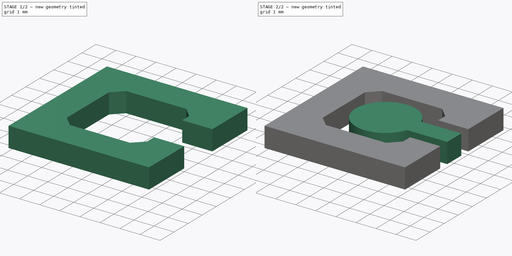
[diagram: build sequence overview — one tinted view per stage of 2, left to right]
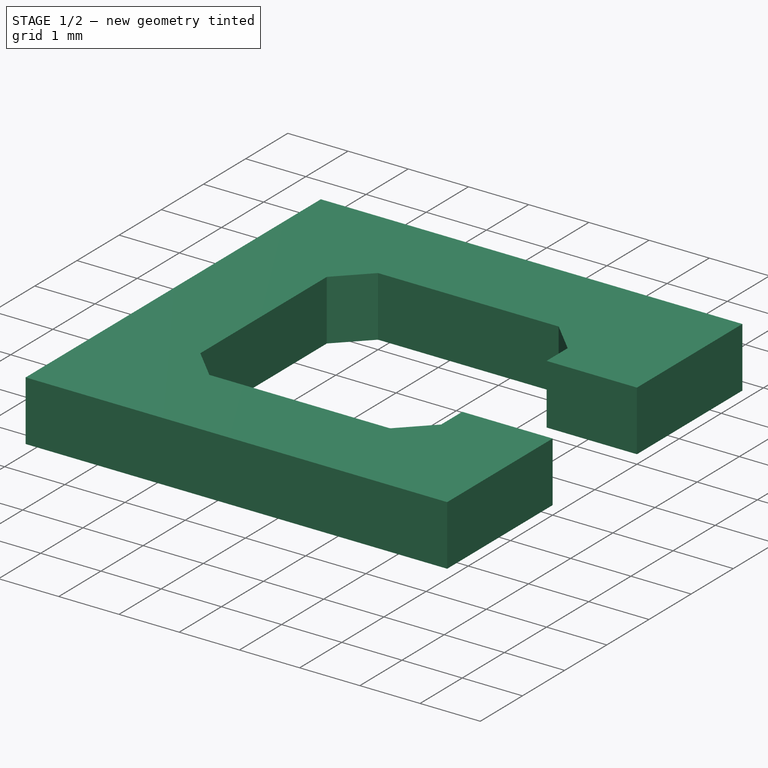
[diagram: stage 1 of 2 — iso view after this stage's code; geometry added in this stage tinted green]
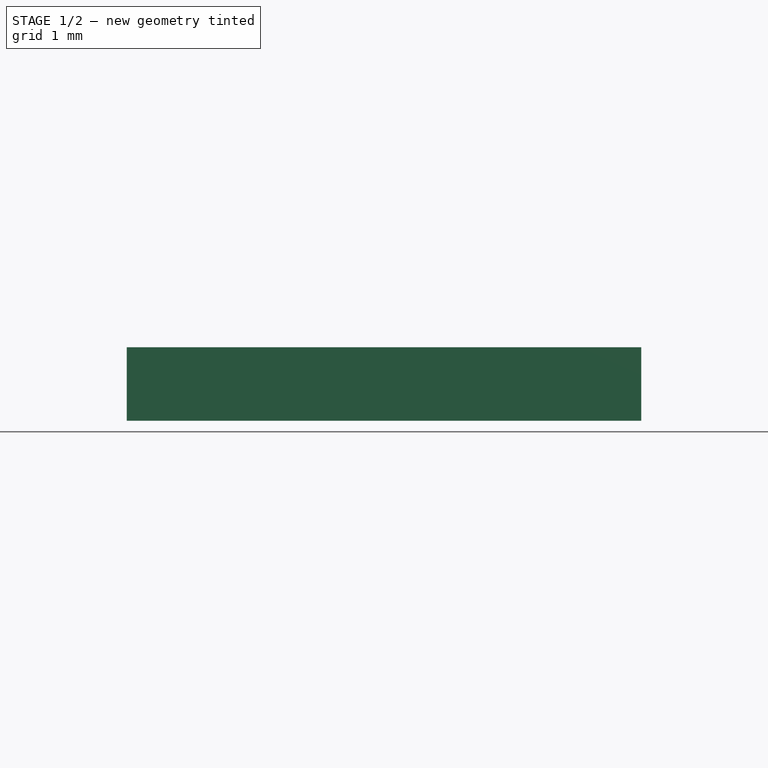
[diagram: stage 1 of 2 — front view after this stage's code; geometry added in this stage tinted green]
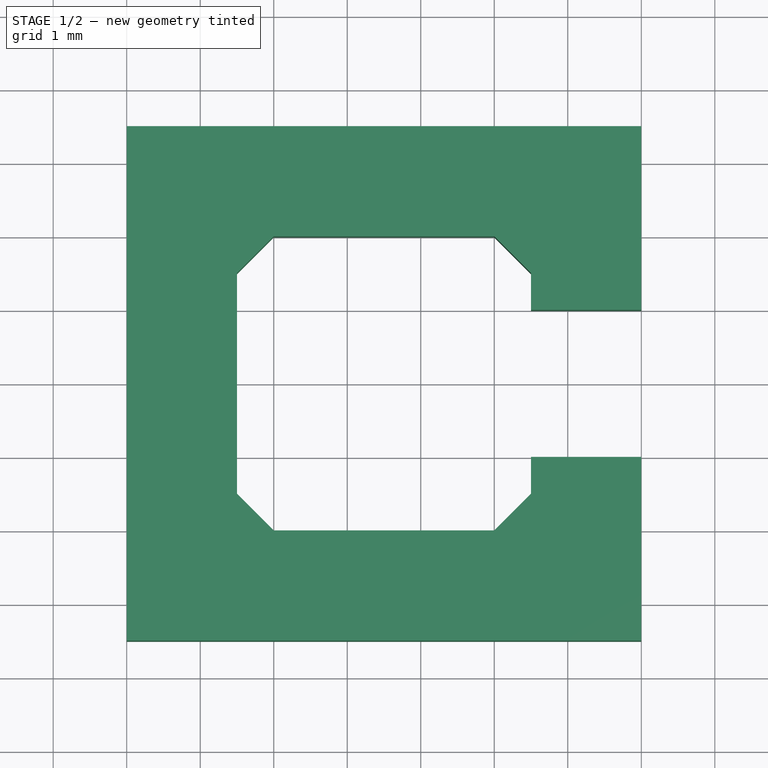
[diagram: stage 1 of 2 — top view after this stage's code; geometry added in this stage tinted green]
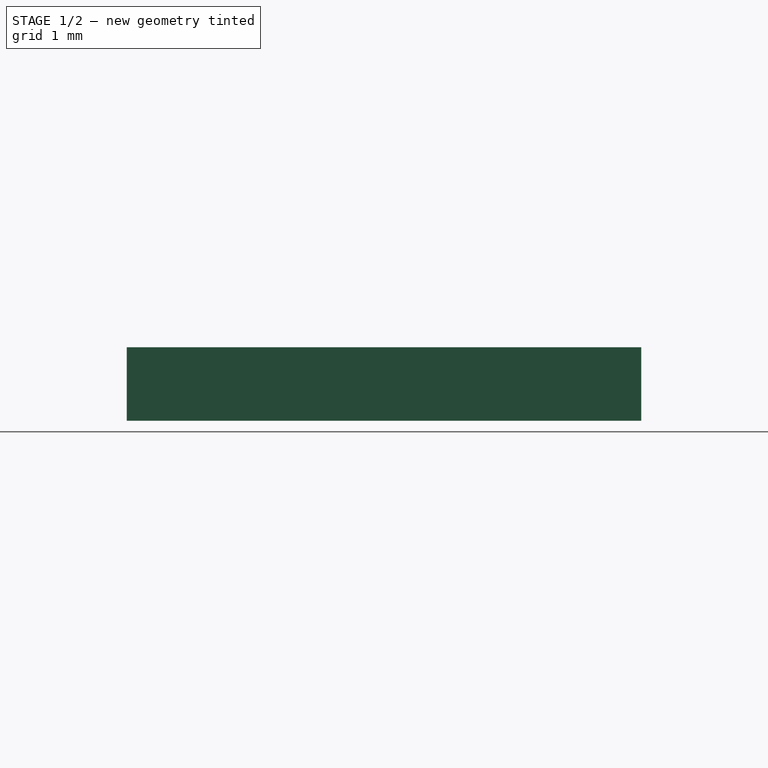
[diagram: stage 1 of 2 — right view after this stage's code; geometry added in this stage tinted green]
FCSTD DOCUMENT  (FreeCAD 0.21R33771 (Git))
Label: D-Pad
License: All rights reserved
LicenseURL: http://en.wikipedia.org/wiki/All_rights_reserved
objects: Sketcher::SketchObject×2, PartDesign::Pad×2, PartDesign::Body×2, Image::ImagePlane×1, App::Part×1
note: 8 computed .brp shape members not serialized (recipe doc carries the construction recipe); baked Part::Feature solids carry a one-line shape summary decoded from their .brp

FEATURE [PartDesign::Body] Body001  label="Inner_Pad"
  Group = -> [Sketch001,Pad]
  Origin = -> Origin002
  Tip = -> Pad
FEATURE [PartDesign::Pad] Pad001
  Direction = (0,0,1)
  Length = 1
  Length2 = 10
  Profile = -> Sketch
  ReferenceAxis = -> Sketch [N_Axis]
  Type = 0
FEATURE [PartDesign::Body] Body  label="Outer_Pad"
  Group = -> [Sketch,Pad001]
  Origin = -> Origin001
  Tip = -> Pad001
FEATURE [App::Part] Part
  Group = -> [Body,Body001]
  Origin = -> Origin
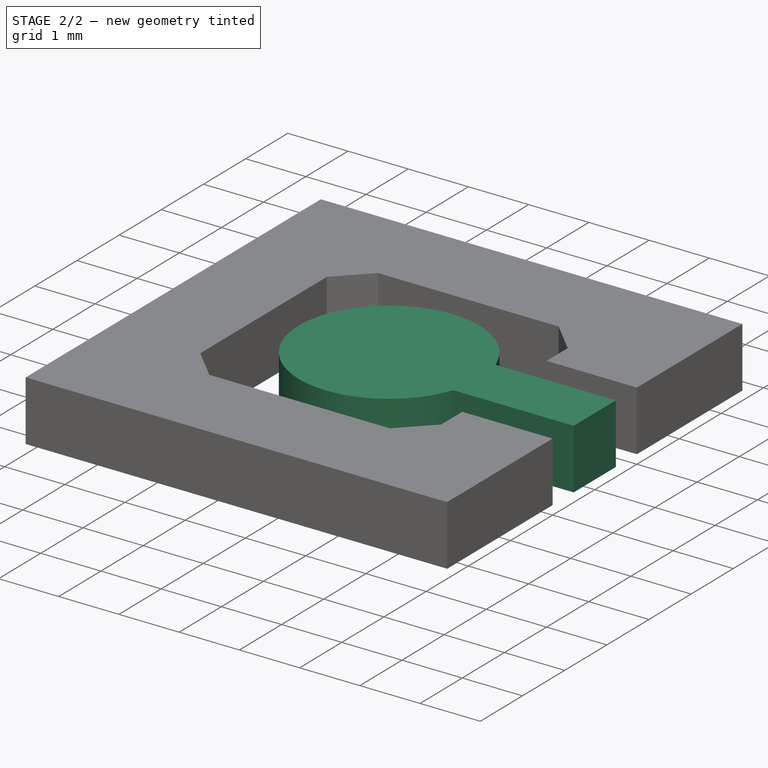
[diagram: stage 2 of 2 — iso view after this stage's code; geometry added in this stage tinted green]
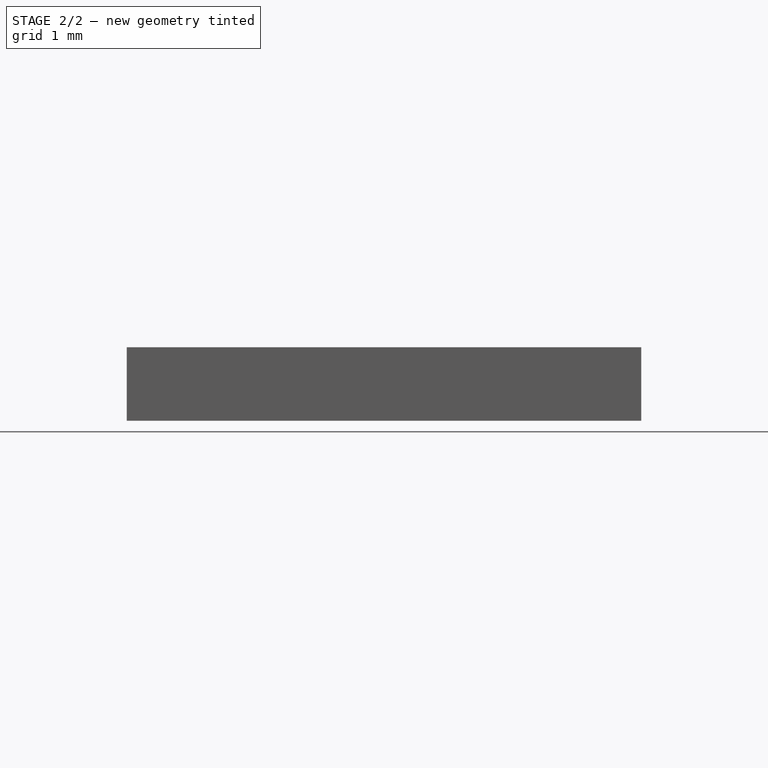
[diagram: stage 2 of 2 — front view after this stage's code; geometry added in this stage tinted green]
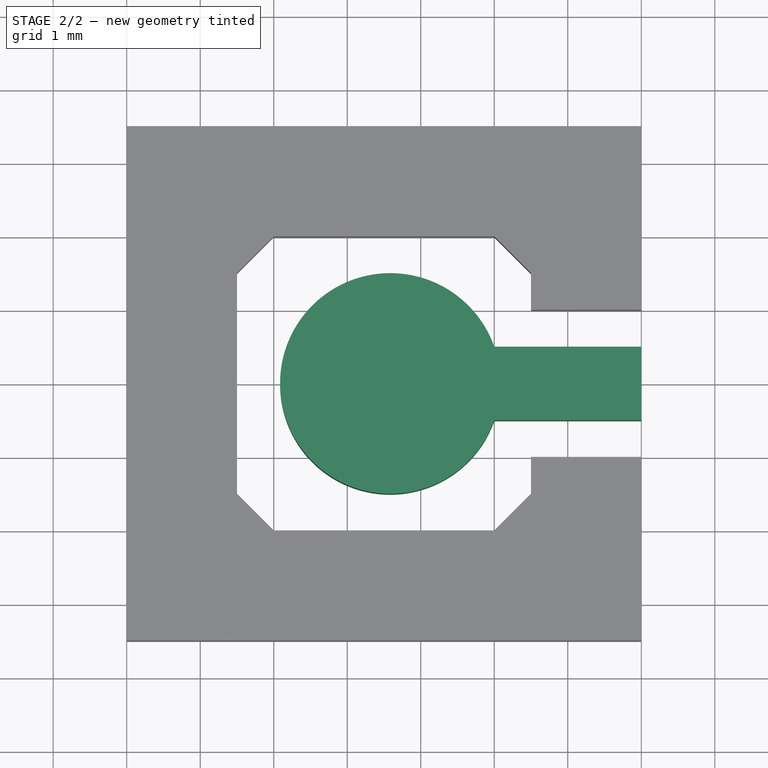
[diagram: stage 2 of 2 — top view after this stage's code; geometry added in this stage tinted green]
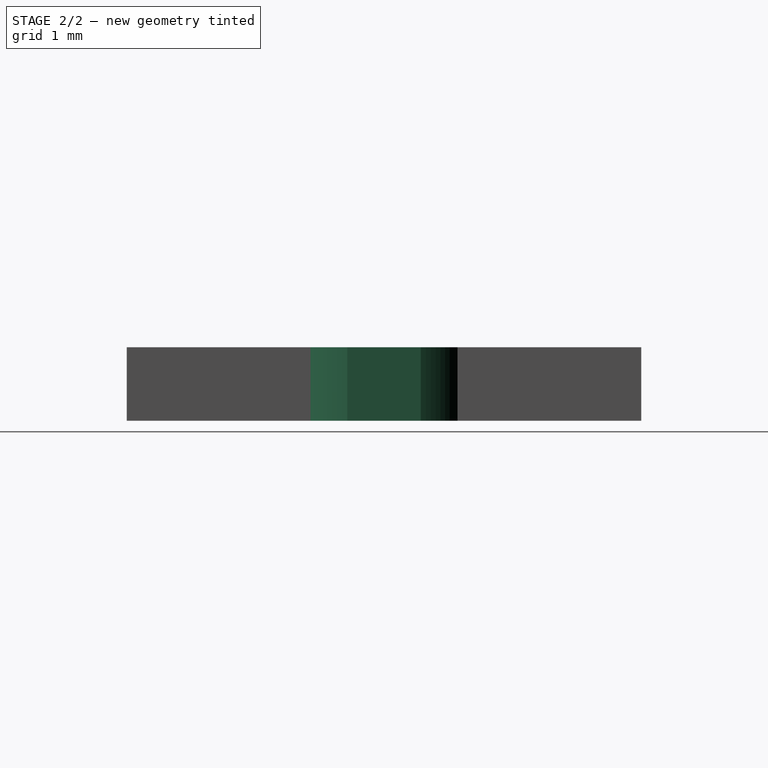
[diagram: stage 2 of 2 — right view after this stage's code; geometry added in this stage tinted green]
FEATURE [Image::ImagePlane] PXL_20240702_134725829
  Placement = pos=(-1,-3.9,0) rot=(0,0,1;0rad)
  XSize = 63.54
  YSize = 45.6
FEATURE [Sketcher::SketchObject] Sketch  label="Outer"
  FullyConstrained = true
  MapMode = 5
  Support = -> [XY_Plane001]
  sketch-geometry (16):
    g0: LineSegment StartX=-8.5 StartY=1 StartZ=0 EndX=-7 EndY=1 EndZ=0
    g1: LineSegment StartX=-7 StartY=1 StartZ=0 EndX=-7 EndY=3.5 EndZ=0
    g2: LineSegment StartX=-7 StartY=3.5 StartZ=0 EndX=-14 EndY=3.5 EndZ=0
    g3: LineSegment StartX=-14 StartY=3.5 StartZ=0 EndX=-14 EndY=-3.5 EndZ=0
    g4: LineSegment StartX=-14 StartY=-3.5 StartZ=0 EndX=-7 EndY=-3.5 EndZ=0
    g5: LineSegment StartX=-7 StartY=-3.5 StartZ=0 EndX=-7 EndY=-1 EndZ=0
    g6: LineSegment StartX=-7 StartY=-1 StartZ=0 EndX=-8.5 EndY=-1 EndZ=0
    g7: LineSegment StartX=-8.5 StartY=-1 StartZ=0 EndX=-8.5 EndY=-1.5 EndZ=0
    g8: LineSegment StartX=-8.5 StartY=-1.5 StartZ=0 EndX=-9 EndY=-2 EndZ=0
    g9: LineSegment StartX=-9 StartY=-2 StartZ=0 EndX=-12 EndY=-2 EndZ=0
    g10: LineSegment StartX=-12 StartY=-2 StartZ=0 EndX=-12.5 EndY=-1.5 EndZ=0
    g11: LineSegment StartX=-12.5 StartY=-1.5 StartZ=0 EndX=-12.5 EndY=1.5 EndZ=0
    g12: LineSegment StartX=-12.5 StartY=1.5 StartZ=0 EndX=-12 EndY=2 EndZ=0
    g13: LineSegment StartX=-12 StartY=2 StartZ=0 EndX=-9 EndY=2 EndZ=0
    g14: LineSegment StartX=-9 StartY=2 StartZ=0 EndX=-8.5 EndY=1.5 EndZ=0
    g15: LineSegment StartX=-8.5 StartY=1.5 StartZ=0 EndX=-8.5 EndY=1 EndZ=0
  constraints (45):
    c: Horizontal(g0)
    c: Coincident(g0,g1)
    c: Vertical(g1)
    c: Coincident(g1,g2)
    c: Horizontal(g2)
    c: Coincident(g2,g3)
    c: Coincident(g3,g4)
    c: Horizontal(g4)
    c: Coincident(g4,g5)
    c: Vertical(g5)
    c: Coincident(g5,g6)
    c: Horizontal(g6)
    c: Coincident(g6,g7)
    c: Coincident(g7,g8)
    c: Coincident(g8,g9)
    c: Horizontal(g9)
    c: Coincident(g9,g10)
    c: Coincident(g10,g11)
    c: Vertical(g11)
    c: Coincident(g11,g12)
    c: Coincident(g12,g13)
    c: Horizontal(g13)
    c: Coincident(g13,g14)
    c: Coincident(g14,g15)
    c: Coincident(g15,g0)
    c: DistanceY(g3,g2) = 7
    c: Symmetric(g2,g3,g-1)
    c: Symmetric(g0,g5,g-1)
    c: DistanceX(g2,g2) = 7
    c: Vertical(g0,g6)
    c: Vertical(g7)
    c: Angle(g9,g10) = 2.35619
    c: Angle(g8,g9) = 2.35619
    c: Angle(g13,g14) = 2.35619
    c: Angle(g12,g13) = 2.35619
    c: DistanceY(g9,g12) = 4
    c: DistanceX(g10,g7) = 4
    c: DistanceX(g0,g0) = 1.5
    c: DistanceY(g11,g11) = 3
    c: DistanceY(g7,g14) = 3
    c: DistanceX(g13,g13) = 3
    c: Vertical(g12,g9)
    c: Symmetric(g14,g7,g-1)
    c: DistanceX(g5,g-1) = 7
    c: DistanceY(g-1,g0) = 1
FEATURE [Sketcher::SketchObject] Sketch001  label="Inner"
  FullyConstrained = true
  MapMode = 5
  Support = -> [XY_Plane002]
  sketch-geometry (4):
    g0: ArcOfCircle CenterX=-10.4142 CenterY=0 CenterZ=0 NormalX=0 NormalY=0 NormalZ=1 AngleXU=0 Radius=1.5 StartAngle=0.339837 EndAngle=5.94335
    g1: LineSegment StartX=-9 StartY=0.5 StartZ=0 EndX=-7 EndY=0.5 EndZ=0
    g2: LineSegment StartX=-7 StartY=0.5 StartZ=0 EndX=-7 EndY=-0.5 EndZ=0
    g3: LineSegment StartX=-7 StartY=-0.5 StartZ=0 EndX=-9 EndY=-0.5 EndZ=0
  constraints (12):
    c: PointOnObject(g0,g-1)
    c: Coincident(g1,g0)
    c: Horizontal(g1)
    c: Coincident(g2,g1)
    c: Coincident(g3,g2)
    c: Coincident(g3,g0)
    c: Horizontal(g3)
    c: Diameter(g0) = 3
    c: DistanceY(g2,g2) = 1
    c: Symmetric(g1,g2,g-1)
    c: DistanceX(g1,g-1) = 7
    c: DistanceX(g1,g1) = 2
FEATURE [PartDesign::Pad] Pad
  Direction = (0,0,1)
  Length = 1
  Length2 = 10
  Profile = -> Sketch001
  ReferenceAxis = -> Sketch001 [N_Axis]
  Type = 0
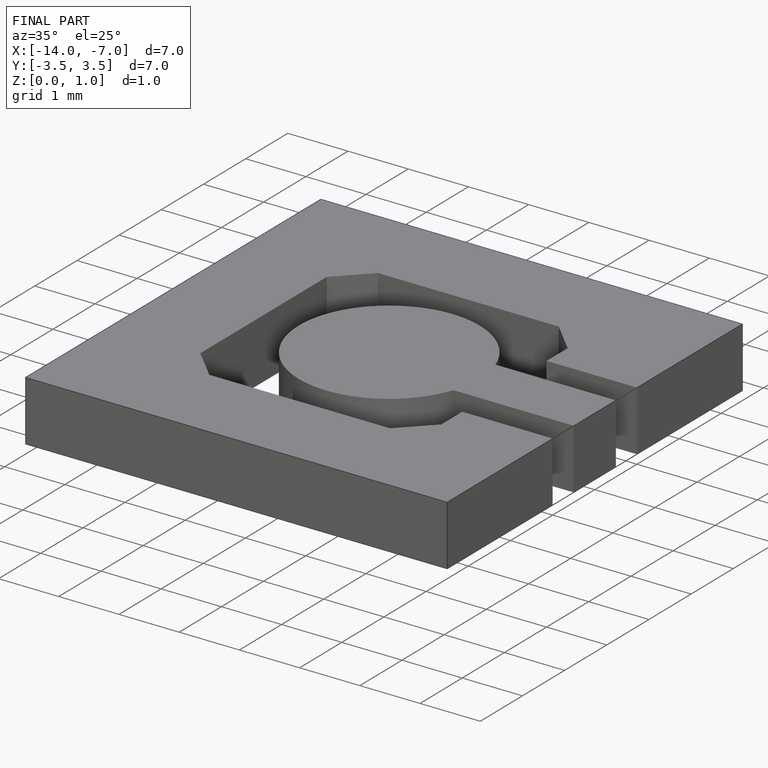
[diagram: finished part — iso view with bounding-box wireframe]
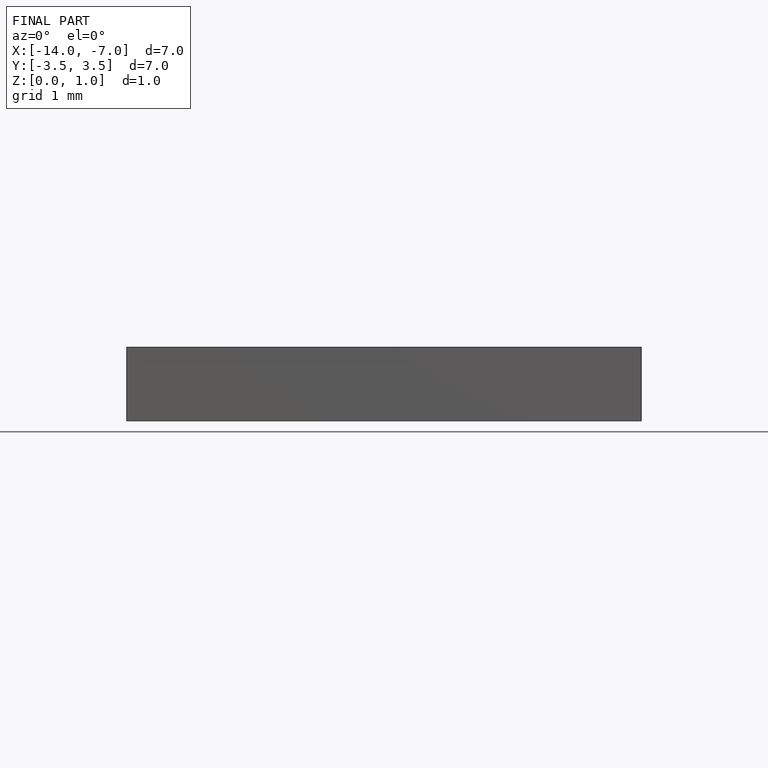
[diagram: finished part — front view with bounding-box wireframe]
